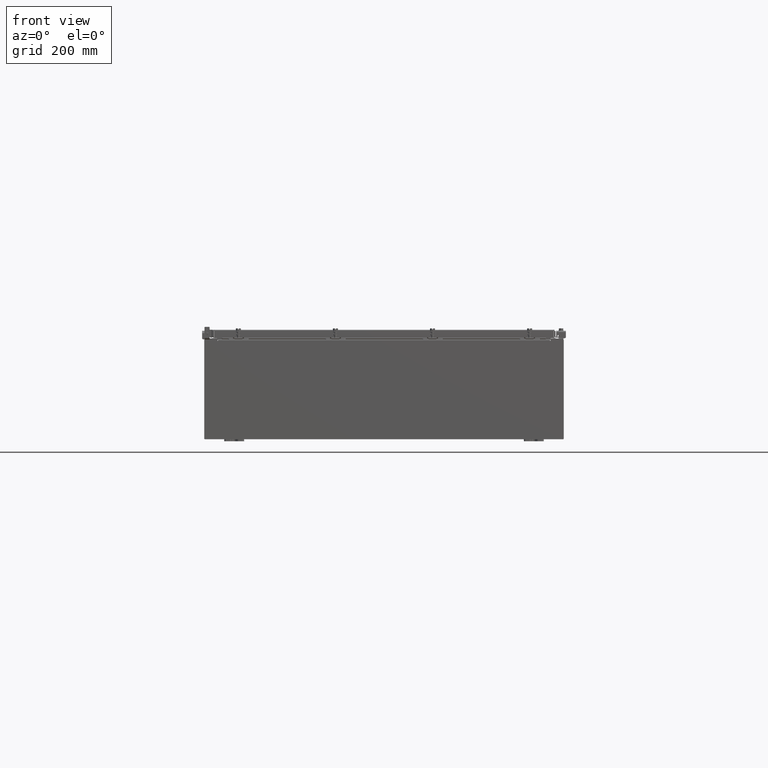
[diagram: clean part render]
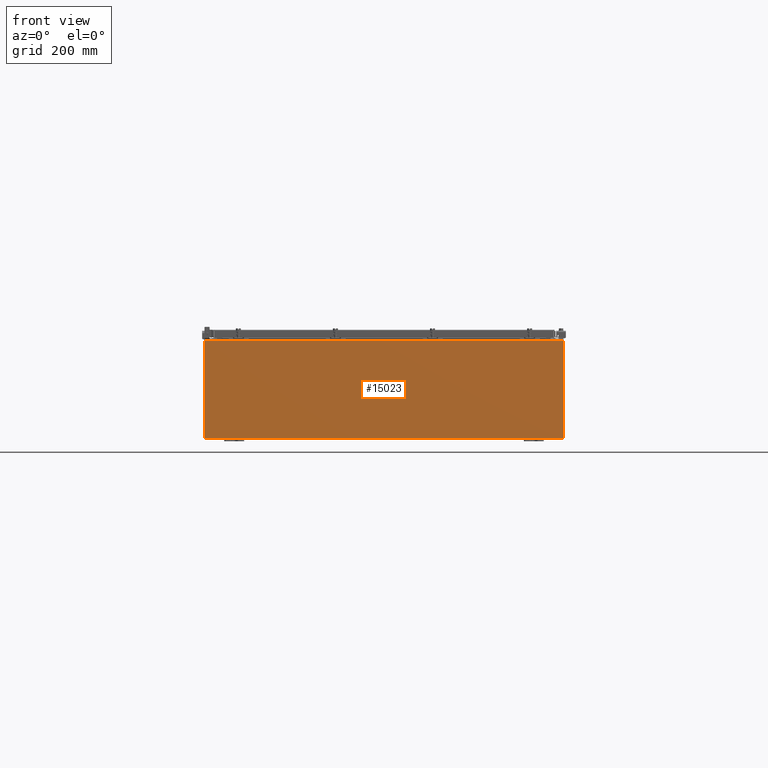
[diagram: same view with one face highlighted and labeled with its STEP entity id]
A machine part, front view. The second image highlights one B-rep face of the part: STEP entity #15023.
In plain terms, the highlighted planar face has unit normal (-0, 1, -0).
Its self-contained STEP definition (entity closure, byte-faithful):
#93 = CARTESIAN_POINT ( 'NONE',  ( -16.67455000000000000, 0.0000000000000000000, 4.925300000000000000 ) ) ;
#213 = LINE ( 'NONE', #6243, #22171 ) ;
#264 = LINE ( 'NONE', #5113, #22229 ) ;
#428 = VERTEX_POINT ( 'NONE', #5562 ) ;
#582 = CARTESIAN_POINT ( 'NONE',  ( 16.63720000000000400, 0.0000000000000000000, 4.912300000000000100 ) ) ;
#758 = CARTESIAN_POINT ( 'NONE',  ( -16.67455000000000000, 0.0000000000000000000, 4.874950000000000100 ) ) ;
#857 = VECTOR ( 'NONE', #21807, 39.37007874015748100 ) ;
#893 = CARTESIAN_POINT ( 'NONE',  ( 17.92530000000000000, 0.0000000000000000000, 4.925300000000000000 ) ) ;
#1906 = ORIENTED_EDGE ( 'NONE', *, *, #3651, .T. ) ;
#2496 = VERTEX_POINT ( 'NONE', #2608 ) ;
#2608 = CARTESIAN_POINT ( 'NONE',  ( 17.92530000000000000, 0.0000000000000000000, 4.925300000000000000 ) ) ;
#2644 = EDGE_CURVE ( 'NONE', #11025, #2496, #264, .T. ) ;
#2901 = CIRCLE ( 'NONE', #24532, 0.01867499999999949400 ) ;
#3482 = DIRECTION ( 'NONE',  ( 0.0000000000000000000, -0.0000000000000000000, -1.000000000000000000 ) ) ;
#3651 = EDGE_CURVE ( 'NONE', #12484, #4303, #213, .T. ) ;
#3661 = LINE ( 'NONE', #893, #9323 ) ;
#3897 = EDGE_CURVE ( 'NONE', #11025, #11178, #24485, .T. ) ;
#4051 = VERTEX_POINT ( 'NONE', #5768 ) ;
#4303 = VERTEX_POINT ( 'NONE', #93 ) ;
#4499 = VERTEX_POINT ( 'NONE', #758 ) ;
#5113 = CARTESIAN_POINT ( 'NONE',  ( -17.92530000000000000, 0.0000000000000000000, 4.925300000000000000 ) ) ;
#5398 = CARTESIAN_POINT ( 'NONE',  ( -17.92530000000000000, 0.0000000000000000000, 4.925300000000000000 ) ) ;
#5562 = CARTESIAN_POINT ( 'NONE',  ( -16.63720000000000400, -0.0000000000000000000, 4.874950000000000100 ) ) ;
#5768 = CARTESIAN_POINT ( 'NONE',  ( 16.63720000000000400, 0.0000000000000000000, 4.874950000000000100 ) ) ;
#6243 = CARTESIAN_POINT ( 'NONE',  ( -17.92530000000000000, 0.0000000000000000000, 4.925300000000000000 ) ) ;
#6256 = CARTESIAN_POINT ( 'NONE',  ( 16.67455000000000700, 0.0000000000000000000, 4.925300000000000000 ) ) ;
#6334 = DIRECTION ( 'NONE',  ( 1.000000000000000000, 0.0000000000000000000, 0.0000000000000000000 ) ) ;
#6476 = LINE ( 'NONE', #25997, #857 ) ;
#6949 = ORIENTED_EDGE ( 'NONE', *, *, #27454, .T. ) ;
#7089 = VECTOR ( 'NONE', #25746, 39.37007874015748100 ) ;
#7231 = DIRECTION ( 'NONE',  ( 1.000000000000000000, 0.0000000000000000000, 0.0000000000000000000 ) ) ;
#7638 = CARTESIAN_POINT ( 'NONE',  ( -16.65587500000000200, 0.0000000000000000000, 4.874950000000000100 ) ) ;
#7739 = EDGE_CURVE ( 'NONE', #4051, #14215, #18870, .T. ) ;
#7947 = EDGE_CURVE ( 'NONE', #11178, #4051, #2901, .T. ) ;
#8116 = CARTESIAN_POINT ( 'NONE',  ( -16.63720000000000400, -7.171100983368691200E-016, 4.912300000000000100 ) ) ;
#8148 = VECTOR ( 'NONE', #24151, 39.37007874015748100 ) ;
#8571 = ORIENTED_EDGE ( 'NONE', *, *, #2644, .T. ) ;
#8767 = EDGE_CURVE ( 'NONE', #14866, #428, #19504, .T. ) ;
#8987 = EDGE_CURVE ( 'NONE', #14866, #14215, #16163, .T. ) ;
#9249 = EDGE_CURVE ( 'NONE', #4499, #4303, #6476, .T. ) ;
#9323 = VECTOR ( 'NONE', #9342, 39.37007874015748100 ) ;
#9342 = DIRECTION ( 'NONE',  ( 0.0000000000000000000, 0.0000000000000000000, -1.000000000000000000 ) ) ;
#9451 = EDGE_CURVE ( 'NONE', #428, #4499, #20156, .T. ) ;
#9785 = DIRECTION ( 'NONE',  ( 0.0000000000000000000, 0.0000000000000000000, -1.000000000000000000 ) ) ;
#9797 = CARTESIAN_POINT ( 'NONE',  ( 0.0000000000000000000, 0.0000000000000000000, 0.0000000000000000000 ) ) ;
#10664 = CARTESIAN_POINT ( 'NONE',  ( 16.65587500000000200, 0.0000000000000000000, 4.874950000000000100 ) ) ;
#11025 = VERTEX_POINT ( 'NONE', #6256 ) ;
#11178 = VERTEX_POINT ( 'NONE', #21614 ) ;
#12078 = ORIENTED_EDGE ( 'NONE', *, *, #20304, .T. ) ;
#12484 = VERTEX_POINT ( 'NONE', #5398 ) ;
#12655 = FACE_OUTER_BOUND ( 'NONE', #26086, .T. ) ;
#12667 = CARTESIAN_POINT ( 'NONE',  ( -17.92530000000000000, 0.0000000000000000000, -4.925300000000000000 ) ) ;
#12741 = LINE ( 'NONE', #23615, #7089 ) ;
#12812 = DIRECTION ( 'NONE',  ( 0.0000000000000000000, 0.0000000000000000000, -1.000000000000000000 ) ) ;
#13785 = DIRECTION ( 'NONE',  ( -8.681145560800009800E-014, 0.0000000000000000000, -1.000000000000000000 ) ) ;
#13991 = ORIENTED_EDGE ( 'NONE', *, *, #9451, .F. ) ;
#14215 = VERTEX_POINT ( 'NONE', #582 ) ;
#14477 = ORIENTED_EDGE ( 'NONE', *, *, #3897, .F. ) ;
#14866 = VERTEX_POINT ( 'NONE', #17832 ) ;
#15023 = ADVANCED_FACE ( 'NONE', ( #12655 ), #26845, .F. ) ;
#15047 = ORIENTED_EDGE ( 'NONE', *, *, #8767, .F. ) ;
#15600 = CARTESIAN_POINT ( 'NONE',  ( -16.63720000000000400, -0.0000000000000000000, 0.0000000000000000000 ) ) ;
#16127 = ORIENTED_EDGE ( 'NONE', *, *, #7739, .F. ) ;
#16163 = LINE ( 'NONE', #8116, #26826 ) ;
#16235 = DIRECTION ( 'NONE',  ( 0.0000000000000000000, -1.000000000000000000, 0.0000000000000000000 ) ) ;
#16858 = ORIENTED_EDGE ( 'NONE', *, *, #8987, .T. ) ;
#17832 = CARTESIAN_POINT ( 'NONE',  ( -16.63720000000000400, -7.171100983368691200E-016, 4.912300000000000100 ) ) ;
#18115 = ORIENTED_EDGE ( 'NONE', *, *, #9249, .F. ) ;
#18175 = VECTOR ( 'NONE', #13785, 39.37007874015748100 ) ;
#18497 = CARTESIAN_POINT ( 'NONE',  ( 16.63720000000000400, 0.0000000000000000000, 0.0000000000000000000 ) ) ;
#18753 = VECTOR ( 'NONE', #22765, 39.37007874015748100 ) ;
#18870 = LINE ( 'NONE', #18497, #23198 ) ;
#19504 = LINE ( 'NONE', #15600, #8148 ) ;
#20156 = CIRCLE ( 'NONE', #21349, 0.01867499999999949400 ) ;
#20304 = EDGE_CURVE ( 'NONE', #22016, #12484, #12741, .T. ) ;
#20532 = CARTESIAN_POINT ( 'NONE',  ( 17.92530000000000000, 0.0000000000000000000, -4.925300000000000000 ) ) ;
#20627 = CARTESIAN_POINT ( 'NONE',  ( -17.92530000000000000, 0.0000000000000000000, -4.925300000000000000 ) ) ;
#20639 = DIRECTION ( 'NONE',  ( 0.0000000000000000000, 0.0000000000000000000, 1.000000000000000000 ) ) ;
#21349 = AXIS2_PLACEMENT_3D ( 'NONE', #7638, #22529, #9785 ) ;
#21614 = CARTESIAN_POINT ( 'NONE',  ( 16.67455000000000000, 0.0000000000000000000, 4.874950000000000100 ) ) ;
#21807 = DIRECTION ( 'NONE',  ( 0.0000000000000000000, 0.0000000000000000000, 1.000000000000000000 ) ) ;
#22016 = VERTEX_POINT ( 'NONE', #12667 ) ;
#22169 = AXIS2_PLACEMENT_3D ( 'NONE', #9797, #16235, #3482 ) ;
#22171 = VECTOR ( 'NONE', #6334, 39.37007874015748100 ) ;
#22229 = VECTOR ( 'NONE', #7231, 39.37007874015748100 ) ;
#22529 = DIRECTION ( 'NONE',  ( -0.0000000000000000000, 1.000000000000000000, -0.0000000000000000000 ) ) ;
#22765 = DIRECTION ( 'NONE',  ( -1.000000000000000000, -0.0000000000000000000, -0.0000000000000000000 ) ) ;
#23136 = ORIENTED_EDGE ( 'NONE', *, *, #24785, .T. ) ;
#23173 = VERTEX_POINT ( 'NONE', #20532 ) ;
#23198 = VECTOR ( 'NONE', #20639, 39.37007874015748100 ) ;
#23615 = CARTESIAN_POINT ( 'NONE',  ( -17.92530000000000000, 0.0000000000000000000, 4.925300000000000000 ) ) ;
#24151 = DIRECTION ( 'NONE',  ( 0.0000000000000000000, 0.0000000000000000000, -1.000000000000000000 ) ) ;
#24388 = CARTESIAN_POINT ( 'NONE',  ( 16.67454999999957700, -0.0000000000000000000, -1.447541957108341500E-012 ) ) ;
#24485 = LINE ( 'NONE', #24388, #18175 ) ;
#24532 = AXIS2_PLACEMENT_3D ( 'NONE', #10664, #25545, #12812 ) ;
#24785 = EDGE_CURVE ( 'NONE', #23173, #22016, #25080, .T. ) ;
#25080 = LINE ( 'NONE', #20627, #18753 ) ;
#25152 = DIRECTION ( 'NONE',  ( 1.000000000000000000, 0.0000000000000000000, 0.0000000000000000000 ) ) ;
#25545 = DIRECTION ( 'NONE',  ( -0.0000000000000000000, 1.000000000000000000, -0.0000000000000000000 ) ) ;
#25746 = DIRECTION ( 'NONE',  ( -0.0000000000000000000, -0.0000000000000000000, 1.000000000000000000 ) ) ;
#25997 = CARTESIAN_POINT ( 'NONE',  ( -16.67455000000000000, -0.0000000000000000000, 0.0000000000000000000 ) ) ;
#26086 = EDGE_LOOP ( 'NONE', ( #18115, #13991, #15047, #16858, #16127, #27464, #14477, #8571, #6949, #23136, #12078, #1906 ) ) ;
#26826 = VECTOR ( 'NONE', #25152, 39.37007874015748100 ) ;
#26845 = PLANE ( 'NONE',  #22169 ) ;
#27454 = EDGE_CURVE ( 'NONE', #2496, #23173, #3661, .T. ) ;
#27464 = ORIENTED_EDGE ( 'NONE', *, *, #7947, .F. ) ;